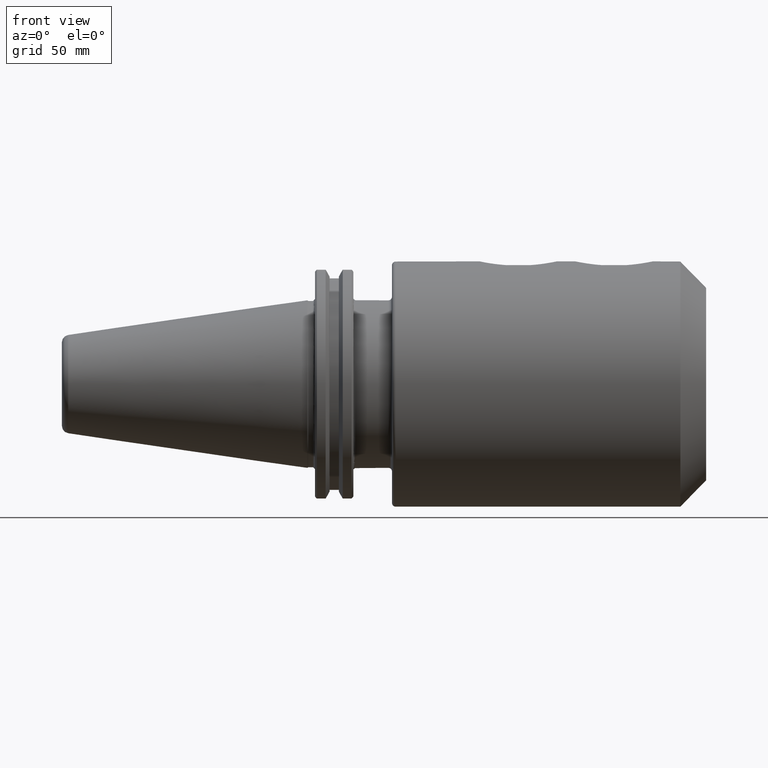
[diagram: clean part render]
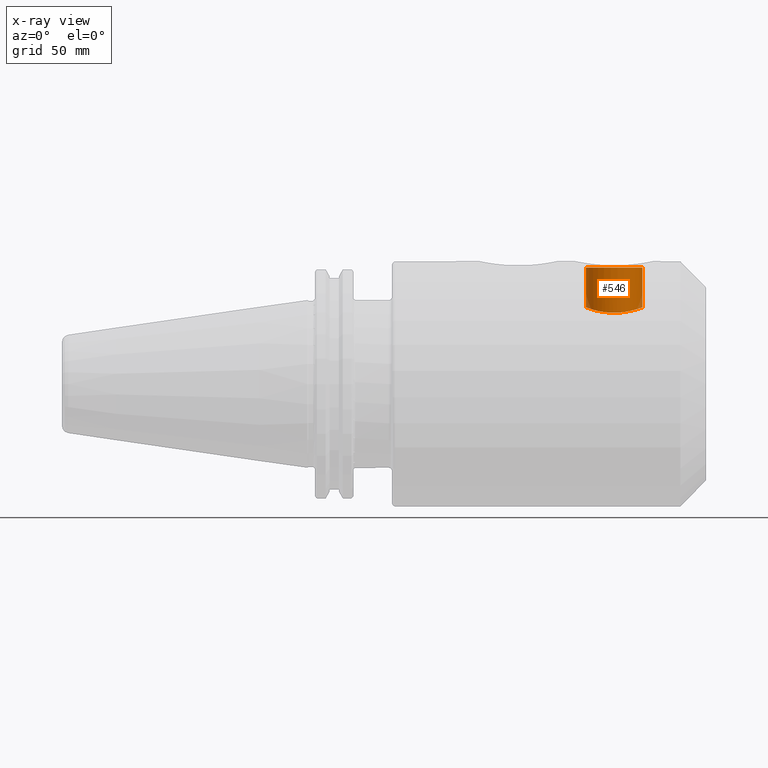
[diagram: x-ray — body ghosted, one internal face saturated and labeled with its STEP entity id]
A machine part, front view, then the same camera in x-ray: the body is ghosted and one INTERNAL B-rep face — a face not visible from any outside direction — is saturated and labeled: STEP entity #546.
In plain terms, the highlighted cylindrical surface (bore or boss wall) has radius 11.7221 mm, axis along (0, 0, 1).
Its self-contained STEP definition (entity closure, byte-faithful):
#485=CARTESIAN_POINT('',(5.461500000000001,1.224647E-016,1.898754985693856));
#486=VERTEX_POINT('',#485);
#487=CARTESIAN_POINT('',(5.000000000000001,1.224647E-016,1.898754985693856));
#488=DIRECTION('',(0.0,0.0,1.0));
#489=DIRECTION('',(1.0,0.0,0.0));
#490=AXIS2_PLACEMENT_3D('',#487,#488,#489);
#491=CIRCLE('',#490,0.4615);
#492=EDGE_CURVE('',#486,#486,#491,.T.);
#497=CARTESIAN_POINT('',(5.000000000000001,1.224647E-016,1.5));
#498=DIRECTION('',(0.0,0.0,1.0));
#499=DIRECTION('',(1.0,0.0,0.0));
#500=AXIS2_PLACEMENT_3D('',#497,#498,#499);
#501=CYLINDRICAL_SURFACE('',#500,0.4615);
#502=CARTESIAN_POINT('',(5.000000000000001,0.4615,1.161687457967934));
#503=VERTEX_POINT('',#502);
#504=CARTESIAN_POINT('',(5.000000000000001,0.4615,1.161687457967934));
#505=CARTESIAN_POINT('',(4.941426924091791,0.4615,1.161687457967934));
#506=CARTESIAN_POINT('',(4.879378760650586,0.449680112353733,1.166584550573267));
#507=CARTESIAN_POINT('',(4.765868452960717,0.402422851230829,1.183717672429335));
#508=CARTESIAN_POINT('',(4.714350489264791,0.367010048299974,1.195650260485897));
#509=CARTESIAN_POINT('',(4.633019089677185,0.285678648712368,1.217645715084329));
#510=CARTESIAN_POINT('',(4.597584022038793,0.234149370544644,1.229212716967056));
#511=CARTESIAN_POINT('',(4.550309939416986,0.120596029815212,1.245490437135175));
#512=CARTESIAN_POINT('',(4.5385,0.058531121884822,1.25));
#513=CARTESIAN_POINT('',(4.538500000000001,-0.058531121884822,1.25));
#514=CARTESIAN_POINT('',(4.550309939416986,-0.120596029815212,1.245490437135175));
#515=CARTESIAN_POINT('',(4.597584022038793,-0.234149370544645,1.229212716967056));
#516=CARTESIAN_POINT('',(4.633019089677185,-0.285678648712368,1.217645715084329));
#517=CARTESIAN_POINT('',(4.714350489264791,-0.367010048299974,1.195650260485897));
#518=CARTESIAN_POINT('',(4.765868452960716,-0.402422851230829,1.183717672429335));
#519=CARTESIAN_POINT('',(4.879378760650587,-0.449680112353733,1.166584550573267));
#520=CARTESIAN_POINT('',(4.941426924091791,-0.4615,1.161687457967934));
#521=CARTESIAN_POINT('',(5.05857307590821,-0.4615,1.161687457967934));
#522=CARTESIAN_POINT('',(5.120621239349415,-0.449680112353733,1.166584550573267));
#523=CARTESIAN_POINT('',(5.234131547039285,-0.402422851230829,1.183717672429335));
#524=CARTESIAN_POINT('',(5.28564951073521,-0.367010048299974,1.195650260485897));
#525=CARTESIAN_POINT('',(5.366980910322816,-0.285678648712368,1.217645715084329));
#526=CARTESIAN_POINT('',(5.402415977961208,-0.234149370544645,1.229212716967056));
#527=CARTESIAN_POINT('',(5.449690060583015,-0.120596029815212,1.245490437135175));
#528=CARTESIAN_POINT('',(5.461500000000001,-0.058531121884822,1.25));
#529=CARTESIAN_POINT('',(5.461500000000001,0.058531121884822,1.25));
#530=CARTESIAN_POINT('',(5.449690060583015,0.120596029815212,1.245490437135175));
#531=CARTESIAN_POINT('',(5.402415977961208,0.234149370544645,1.229212716967056));
#532=CARTESIAN_POINT('',(5.366980910322816,0.285678648712368,1.217645715084329));
#533=CARTESIAN_POINT('',(5.28564951073521,0.367010048299974,1.195650260485897));
#534=CARTESIAN_POINT('',(5.234131547039285,0.402422851230829,1.183717672429335));
#535=CARTESIAN_POINT('',(5.120621239349415,0.449680112353733,1.166584550573267));
#536=CARTESIAN_POINT('',(5.05857307590821,0.4615,1.161687457967934));
#537=CARTESIAN_POINT('',(5.000000000000001,0.4615,1.161687457967934));
#538=B_SPLINE_CURVE_WITH_KNOTS('',3,(#504,#505,#506,#507,#508,#509,#510,#511,#512,#513,#514,#515,#516,#517,#518,#519,#520,#521,#522,#523,#524,#525,#526,#527,#528,#529,#530,#531,#532,#533,#534,#535,#536,#537),.UNSPECIFIED.,.T.,.U.,(4,2,2,2,2,2,2,2,2,2,2,2,2,2,2,2,4),(0.0,0.446326838420556,0.892653676841112,1.338660825603456,1.784667974365799,2.230675123128143,2.676682271890487,3.123009110311043,3.569335948731599,4.015662787152155,4.461989625572711,4.907996774335055,5.354003923097398,5.800011071859742,6.246018220622085,6.692345059042641,7.138671897463198),.UNSPECIFIED.);
#539=EDGE_CURVE('',#503,#503,#538,.T.);
#540=ORIENTED_EDGE('',*,*,#539,.F.);
#541=EDGE_LOOP('',(#540));
#542=FACE_OUTER_BOUND('',#541,.T.);
#543=ORIENTED_EDGE('',*,*,#492,.T.);
#544=EDGE_LOOP('',(#543));
#545=FACE_BOUND('',#544,.T.);
#546=ADVANCED_FACE('',(#542,#545),#501,.F.);